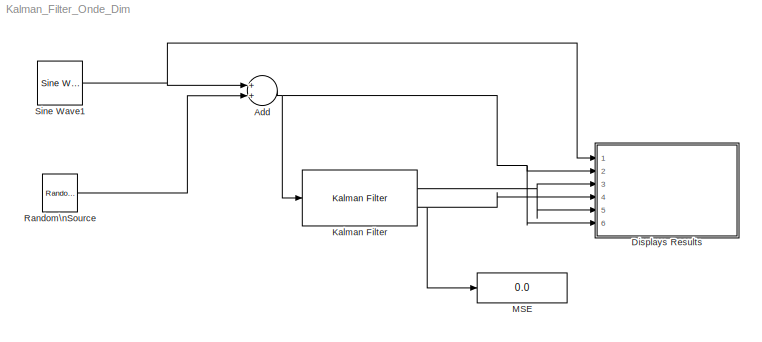
MODEL Kalman_Filter_Onde_Dim
KIND model
BLOCK [Sum] Add
  CollapseMode = All dimensions
  OutDataTypeMode = double
  OutScaling = 2^-10
  Ports = [2, 1]
  RndMeth = Nearest
  SampleTime = 1/1000
  SaturateOnIntegerOverflow = off
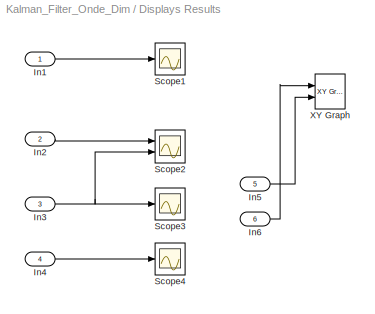
BLOCK [SubSystem] Displays Results
  FunctionWithSeparateData = off
  MaskHideContents = off
  MinAlgLoopOccurrences = off
  Ports = [6]
  RTWSystemCode = Auto
BLOCK [Inport] Displays Results/In1
  IconDisplay = Port number
BLOCK [Inport] Displays Results/In2
  IconDisplay = Port number
  Port = 2
BLOCK [Inport] Displays Results/In3
  IconDisplay = Port number
  Port = 3
BLOCK [Inport] Displays Results/In4
  IconDisplay = Port number
  Port = 4
BLOCK [Inport] Displays Results/In5
  IconDisplay = Port number
  Port = 5
BLOCK [Inport] Displays Results/In6
  IconDisplay = Signal name
  Port = 6
BLOCK [Scope] Displays Results/Scope1
  AttributesFormatString = Original signal
  DataFormat = StructureWithTime
  Floating = off
  NumInputPorts = 1
  Ports = [1]
  Priority = 1
  SampleTime = 0
  Tag = Original Sine Wave
  TimeRange = 10
BLOCK [Scope] Displays Results/Scope2
  DataFormat = StructureWithTime
  Floating = off
  NumInputPorts = 2
  Ports = [2]
  SampleTime = 0
  SaveName = ScopeData1
  TimeRange = 5
  YMax = 6~5
  YMin = -6~-5
BLOCK [Scope] Displays Results/Scope3
  DataFormat = StructureWithTime
  Floating = off
  NumInputPorts = 1
  Ports = [1]
  SampleTime = 0
  SaveName = ScopeData2
BLOCK [Scope] Displays Results/Scope4
  DataFormat = StructureWithTime
  Floating = off
  NumInputPorts = 1
  Ports = [1]
  SampleTime = 0
  SaveName = ScopeData3
BLOCK [Reference] Displays Results/XY Graph  REF=simulink/Sinks/XY Graph
  FunctionWithSeparateData = off
  Ports = [2]
  RTWMemSecDataConstants = Inherit from model
  RTWMemSecDataInternal = Inherit from model
  RTWMemSecDataParameters = Inherit from model
  RTWMemSecFuncExecute = Inherit from model
  RTWMemSecFuncInitTerm = Inherit from model
  ShowPortLabels = FromPortIcon
  SourceBlock = simulink/Sinks/XY Graph
  SourceType = XY scope.
  SystemSampleTime = -1
  st = 1/1000
  xmax = 10
  xmin = -10
  ymax = 10
  ymin = -10
BLOCK [Reference] Kalman Filter  REF=dspadpt3/Kalman Filter
  A = 1.00
  DialogController = dspDDGCreate
  DialogControllerArgs = DataTag0
  FunctionWithSeparateData = off
  H = 1.00
  P = 0.90
  Ports = [1, 2]
  Q = 0.01
  R = 2
  RTWMemSecDataConstants = Inherit from model
  RTWMemSecDataInternal = Inherit from model
  RTWMemSecDataParameters = Inherit from model
  RTWMemSecFuncExecute = Inherit from model
  RTWMemSecFuncInitTerm = Inherit from model
  ShowPortLabels = FromPortIcon
  SourceBlock = dspadpt3/Kalman Filter
  SourceType = Kalman Filter
  SystemSampleTime = -1
  X = 1.00
  isOutputEstError = on
  isOutputEstMeasure = off
  isOutputEstState = on
  isOutputPrdError = off
  isOutputPrdMeasure = off
  isOutputPrdState = off
  isReset = on
  num_targets = 1
  sourceEnable = Always
  sourceMeasure = Specify via Dialog
BLOCK [Display] MSE
  Decimation = 1
  Lockdown = off
  Ports = [1]
BLOCK [Reference] Random\nSource  REF=dspsrcs4/Random\nSource
  CltLength = 12
  DataType = Double
  IsInherit = off
  MaxVal = 1
  MeanVal = 0
  MinVal = 0
  NormMethod = Ziggurat
  OutComplex = Real
  Ports = [0, 1]
  RepMode = Not repeatable
  SampFrame = 1
  SampMode = Discrete
  SampTime = 1/1000
  SourceBlock = dspsrcs4/Random\nSource
  SourceType = Random Source
  SrcType = Gaussian
  UserData = DataTag1
  UserDataPersistent = on
  VarVal = 1
  rawSeed = 1
BLOCK [Reference] Sine Wave1  REF=dspsrcs4/Sine Wave
  Amplitude = 3
  CompMethod = Trigonometric fcn
  Frequency = 2
  OutComplex = Real
  Phase = 0
  Ports = [0, 1]
  ResetState = Catch up to simulation time
  SampleMode = Discrete
  SampleTime = 1/1000
  SamplesPerFrame = 1
  SourceBlock = dspsrcs4/Sine Wave
  SourceType = Sine Wave
  TableSize = Speed
  additionalParams = off
  allowOverrides = on
  dataType = double
  fracBitsMode = Best precision
  numFracBits = 15
  udDataType = sfix(16)
  wordLen = 16
NET Add:1 -> Displays Results:2, Displays Results:6, Kalman Filter:1
LINE Displays Results/In1:1 -> Displays Results/Scope1:1
LINE Displays Results/In2:1 -> Displays Results/Scope2:1
NET Displays Results/In3:1 -> Displays Results/Scope2:2, Displays Results/Scope3:1
LINE Displays Results/In4:1 -> Displays Results/Scope4:1
LINE Displays Results/In5:1 -> Displays Results/XY Graph:2
LINE Displays Results/In6:1 -> Displays Results/XY Graph:1
NET Kalman Filter:1 -> Displays Results:3, Displays Results:5
NET Kalman Filter:2 -> Displays Results:4, MSE:1
LINE Random\nSource:1 -> Add:2
NET Sine Wave1:1 -> Add:1, Displays Results:1
note: NET lines group one-source signal fan-out (src -> all destinations, sorted); 1:1 wires keep LINE
